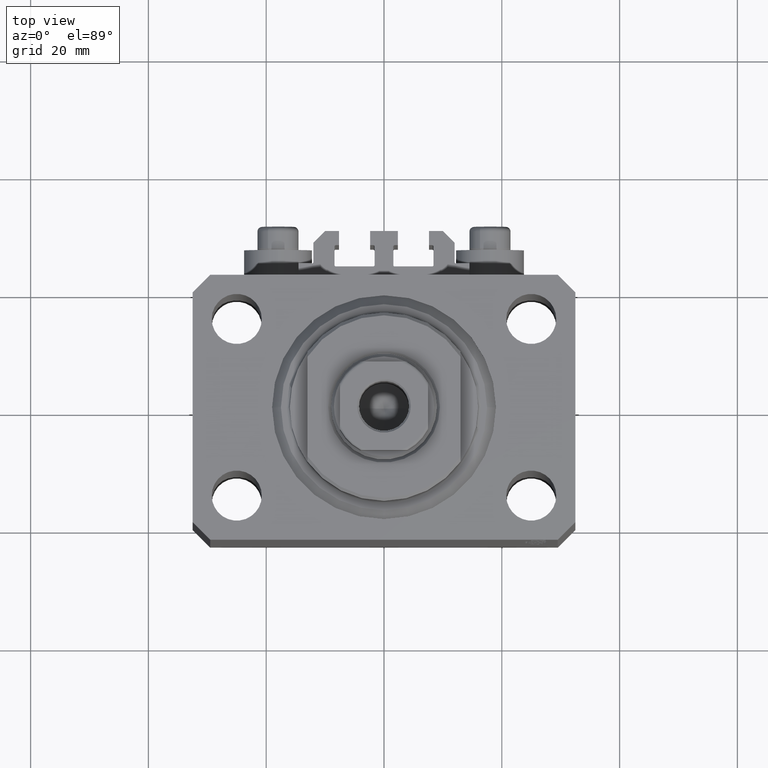
[diagram: clean part render]
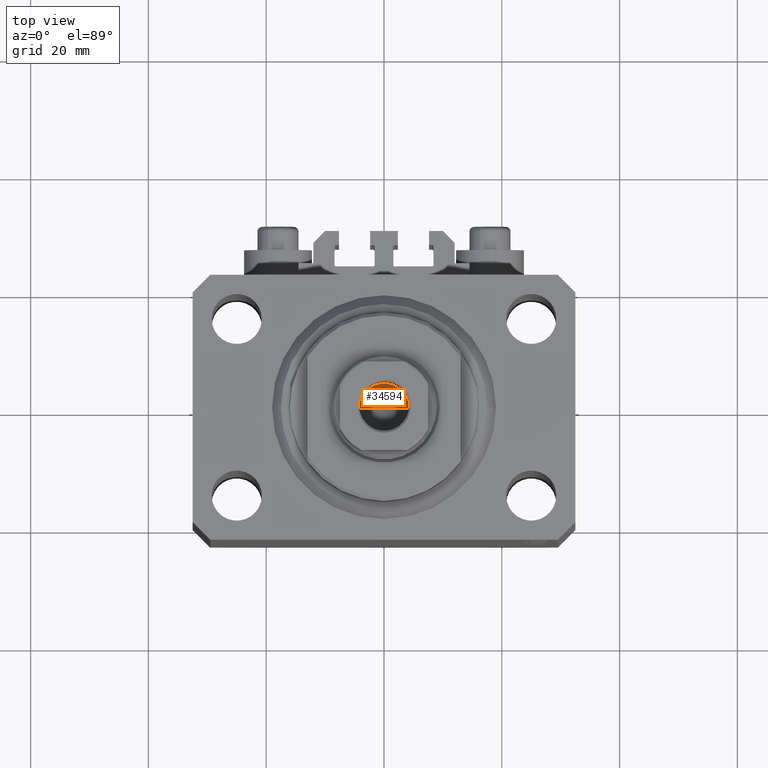
[diagram: same view with one face highlighted and labeled with its STEP entity id]
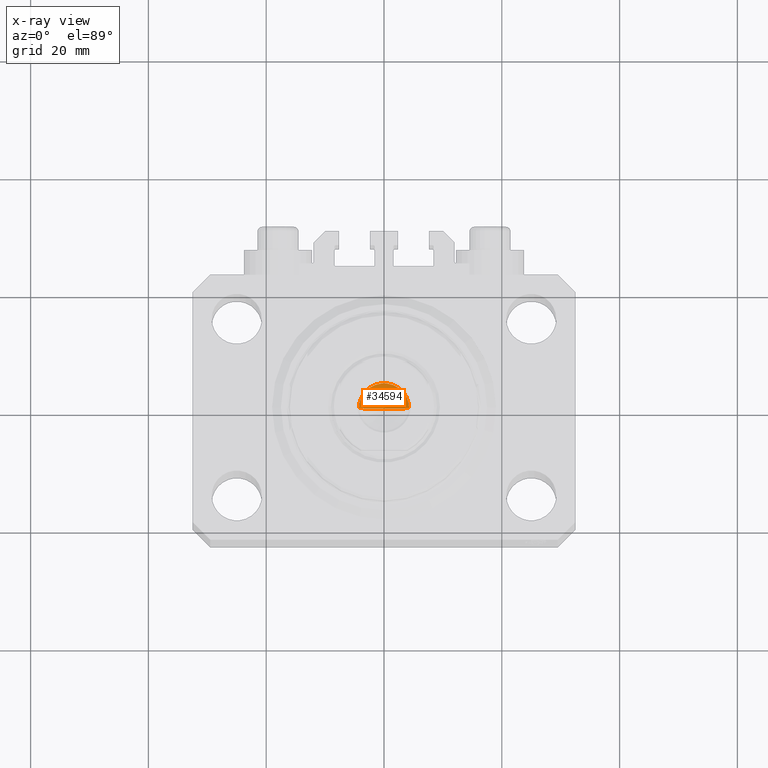
[diagram: x-ray of the same camera — body ghosted, the highlighted face saturated]
A machine part, top view. The second image highlights one B-rep face of the part: STEP entity #34594.
The next image is the same camera in x-ray: the body ghosted, the highlighted face saturated — about 0% of this face is hidden behind the body in this view.
In plain terms, the highlighted conical surface has half-angle 59 deg.
Its self-contained STEP definition (entity closure, byte-faithful):
#2261 = EDGE_CURVE ( 'NONE', #19895, #6815, #6518, .T. ) ;
#3412 = CARTESIAN_POINT ( 'NONE',  ( -4.249999999999994671, 5.204748896376244783E-16, 59.10000000000000853 ) ) ;
#4929 = CARTESIAN_POINT ( 'NONE',  ( 0.000000000000000000, 0.000000000000000000, 59.10000000000000853 ) ) ;
#6518 = CIRCLE ( 'NONE', #44102, 4.249999999999994671 ) ;
#6641 = VECTOR ( 'NONE', #18071, 1000.000000000000000 ) ;
#6815 = VERTEX_POINT ( 'NONE', #25818 ) ;
#7393 = ORIENTED_EDGE ( 'NONE', *, *, #30247, .F. ) ;
#8036 = EDGE_CURVE ( 'NONE', #27295, #19895, #29820, .T. ) ;
#8242 = VECTOR ( 'NONE', #30053, 1000.000000000000000 ) ;
#8294 = FACE_OUTER_BOUND ( 'NONE', #45830, .T. ) ;
#8646 = CARTESIAN_POINT ( 'NONE',  ( -6.748699724488696097E-15, 0.000000000000000000, 56.54634236913287992 ) ) ;
#9128 = ORIENTED_EDGE ( 'NONE', *, *, #2261, .T. ) ;
#9232 = DIRECTION ( 'NONE',  ( -0.000000000000000000, -0.000000000000000000, 1.000000000000000000 ) ) ;
#10028 = ORIENTED_EDGE ( 'NONE', *, *, #8036, .T. ) ;
#12044 = CARTESIAN_POINT ( 'NONE',  ( 4.249999999999994671, 0.000000000000000000, 59.10000000000000853 ) ) ;
#14407 = CONICAL_SURFACE ( 'NONE', #47378, 4.249999999999994671, 1.029744258676653423 ) ;
#18071 = DIRECTION ( 'NONE',  ( -0.8571673007021117785, 1.049727191138617956E-16, 0.5150380749100550437 ) ) ;
#19895 = VERTEX_POINT ( 'NONE', #24893 ) ;
#23884 = DIRECTION ( 'NONE',  ( 1.000000000000000000, 0.000000000000000000, 0.000000000000000000 ) ) ;
#24893 = CARTESIAN_POINT ( 'NONE',  ( 4.249999999999994671, 0.000000000000000000, 59.10000000000000853 ) ) ;
#25818 = CARTESIAN_POINT ( 'NONE',  ( -4.249999999999994671, 5.204748896376244783E-16, 59.10000000000000853 ) ) ;
#27295 = VERTEX_POINT ( 'NONE', #8646 ) ;
#28158 = DIRECTION ( 'NONE',  ( 1.000000000000000000, 0.000000000000000000, 0.000000000000000000 ) ) ;
#29820 = LINE ( 'NONE', #12044, #8242 ) ;
#30053 = DIRECTION ( 'NONE',  ( 0.8571673007021117785, 0.000000000000000000, 0.5150380749100550437 ) ) ;
#30247 = EDGE_CURVE ( 'NONE', #27295, #6815, #36307, .T. ) ;
#31042 = CARTESIAN_POINT ( 'NONE',  ( 0.000000000000000000, 0.000000000000000000, 59.10000000000000853 ) ) ;
#34594 = ADVANCED_FACE ( 'NONE', ( #8294 ), #14407, .F. ) ;
#36307 = LINE ( 'NONE', #3412, #6641 ) ;
#44102 = AXIS2_PLACEMENT_3D ( 'NONE', #31042, #45675, #28158 ) ;
#45675 = DIRECTION ( 'NONE',  ( -0.000000000000000000, -0.000000000000000000, 1.000000000000000000 ) ) ;
#45830 = EDGE_LOOP ( 'NONE', ( #7393, #10028, #9128 ) ) ;
#47378 = AXIS2_PLACEMENT_3D ( 'NONE', #4929, #9232, #23884 ) ;